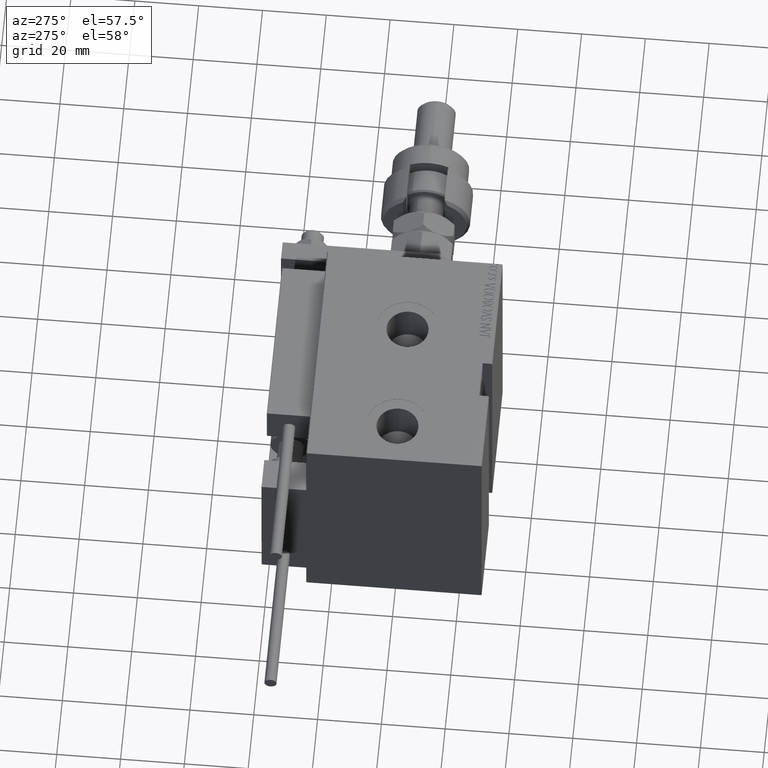
[diagram: clean part render]
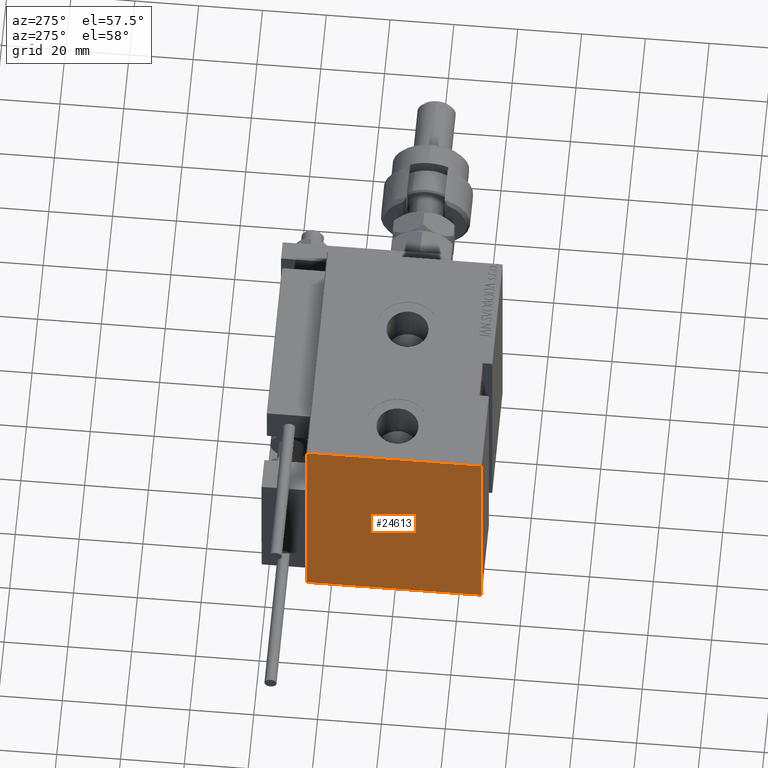
[diagram: same view with one face highlighted and labeled with its STEP entity id]
A machine part, auxiliary view. The second image highlights one B-rep face of the part: STEP entity #24613.
In plain terms, the highlighted planar face has unit normal (-1, 0, 0).
Its self-contained STEP definition (entity closure, byte-faithful):
#812 = DIRECTION ( 'NONE',  ( 0.000000000000000000, -9.251858538542970348E-17, 1.000000000000000000 ) ) ;
#1485 = CARTESIAN_POINT ( 'NONE',  ( 75.00000000000000000, -27.50000000000000000, 37.19999999999999574 ) ) ;
#1640 = ORIENTED_EDGE ( 'NONE', *, *, #42042, .T. ) ;
#1645 = CARTESIAN_POINT ( 'NONE',  ( 75.00000000000000000, -27.50000000000000000, -37.19999999999999574 ) ) ;
#2096 = CARTESIAN_POINT ( 'NONE',  ( 75.00000000000000000, 32.35000000000016485, -32.34999999999978826 ) ) ;
#2756 = EDGE_CURVE ( 'NONE', #33546, #14357, #32787, .T. ) ;
#3073 = EDGE_CURVE ( 'NONE', #53405, #33546, #16888, .T. ) ;
#4338 = DIRECTION ( 'NONE',  ( -0.000000000000000000, 0.7071067811865474617, -0.7071067811865474617 ) ) ;
#4415 = VECTOR ( 'NONE', #812, 1000.000000000000000 ) ;
#4524 = LINE ( 'NONE', #53742, #48428 ) ;
#9063 = EDGE_LOOP ( 'NONE', ( #1640, #49819, #49234, #14435, #24460, #51306, #26239, #28792 ) ) ;
#12038 = VECTOR ( 'NONE', #18885, 999.9999999999998863 ) ;
#12125 = DIRECTION ( 'NONE',  ( -0.000000000000000000, -0.7071067811865474617, 0.7071067811865474617 ) ) ;
#12442 = LINE ( 'NONE', #41276, #13355 ) ;
#13353 = CARTESIAN_POINT ( 'NONE',  ( 75.00000000000000000, -27.50000000000000000, 37.49999999999999289 ) ) ;
#13355 = VECTOR ( 'NONE', #21393, 1000.000000000000000 ) ;
#13556 = EDGE_CURVE ( 'NONE', #48582, #36536, #50590, .T. ) ;
#14357 = VERTEX_POINT ( 'NONE', #20974 ) ;
#14435 = ORIENTED_EDGE ( 'NONE', *, *, #2756, .T. ) ;
#14630 = CARTESIAN_POINT ( 'NONE',  ( 75.00000000000000000, 0.000000000000000000, 0.000000000000000000 ) ) ;
#14902 = FACE_OUTER_BOUND ( 'NONE', #9063, .T. ) ;
#15086 = CARTESIAN_POINT ( 'NONE',  ( 75.00000000000000000, -32.34999999999983800, 32.35000000000021458 ) ) ;
#16421 = EDGE_CURVE ( 'NONE', #14357, #25540, #12442, .T. ) ;
#16888 = LINE ( 'NONE', #33470, #4415 ) ;
#18428 = LINE ( 'NONE', #2096, #21591 ) ;
#18695 = DIRECTION ( 'NONE',  ( -0.000000000000000000, 0.7071067811865434649, 0.7071067811865516806 ) ) ;
#18885 = DIRECTION ( 'NONE',  ( 0.000000000000000000, -0.7071067811865515695, -0.7071067811865435759 ) ) ;
#20974 = CARTESIAN_POINT ( 'NONE',  ( 75.00000000000000000, 27.20000000000000284, 37.50000000000000711 ) ) ;
#21393 = DIRECTION ( 'NONE',  ( 0.000000000000000000, -1.000000000000000000, -2.523234146875355998E-16 ) ) ;
#21591 = VECTOR ( 'NONE', #18695, 1000.000000000000000 ) ;
#21768 = DIRECTION ( 'NONE',  ( 0.000000000000000000, 0.000000000000000000, -1.000000000000000000 ) ) ;
#22220 = VERTEX_POINT ( 'NONE', #29107 ) ;
#24460 = ORIENTED_EDGE ( 'NONE', *, *, #16421, .T. ) ;
#24613 = ADVANCED_FACE ( 'NONE', ( #14902 ), #47806, .T. ) ;
#25540 = VERTEX_POINT ( 'NONE', #29018 ) ;
#26239 = ORIENTED_EDGE ( 'NONE', *, *, #13556, .T. ) ;
#26862 = DIRECTION ( 'NONE',  ( 0.000000000000000000, 0.000000000000000000, -1.000000000000000000 ) ) ;
#28792 = ORIENTED_EDGE ( 'NONE', *, *, #34362, .T. ) ;
#29018 = CARTESIAN_POINT ( 'NONE',  ( 75.00000000000000000, -27.20000000000000284, 37.49999999999999289 ) ) ;
#29107 = CARTESIAN_POINT ( 'NONE',  ( 75.00000000000000000, -27.19999999999999218, -37.50000000000000711 ) ) ;
#29587 = EDGE_CURVE ( 'NONE', #31409, #53405, #18428, .T. ) ;
#29648 = CARTESIAN_POINT ( 'NONE',  ( 75.00000000000000000, 27.49999999999999645, 37.20000000000000995 ) ) ;
#30979 = AXIS2_PLACEMENT_3D ( 'NONE', #14630, #44505, #26862 ) ;
#31409 = VERTEX_POINT ( 'NONE', #31830 ) ;
#31830 = CARTESIAN_POINT ( 'NONE',  ( 75.00000000000000000, 27.19999999999999929, -37.50000000000000711 ) ) ;
#32192 = LINE ( 'NONE', #15086, #12038 ) ;
#32787 = LINE ( 'NONE', #49382, #49583 ) ;
#33470 = CARTESIAN_POINT ( 'NONE',  ( 75.00000000000000000, 27.50000000000000355, -37.50000000000000711 ) ) ;
#33546 = VERTEX_POINT ( 'NONE', #29648 ) ;
#34362 = EDGE_CURVE ( 'NONE', #36536, #22220, #42162, .T. ) ;
#36536 = VERTEX_POINT ( 'NONE', #1645 ) ;
#38565 = VECTOR ( 'NONE', #21768, 1000.000000000000000 ) ;
#41142 = CARTESIAN_POINT ( 'NONE',  ( 75.00000000000000000, 27.50000000000000355, -37.19999999999999574 ) ) ;
#41276 = CARTESIAN_POINT ( 'NONE',  ( 75.00000000000000000, 27.49999999999999645, 37.50000000000000711 ) ) ;
#42042 = EDGE_CURVE ( 'NONE', #22220, #31409, #4524, .T. ) ;
#42162 = LINE ( 'NONE', #46511, #52892 ) ;
#44505 = DIRECTION ( 'NONE',  ( 1.000000000000000000, 0.000000000000000000, 0.000000000000000000 ) ) ;
#45308 = EDGE_CURVE ( 'NONE', #25540, #48582, #32192, .T. ) ;
#46511 = CARTESIAN_POINT ( 'NONE',  ( 75.00000000000000000, -32.34999999999999432, -32.34999999999999432 ) ) ;
#47806 = PLANE ( 'NONE',  #30979 ) ;
#48428 = VECTOR ( 'NONE', #53477, 1000.000000000000000 ) ;
#48582 = VERTEX_POINT ( 'NONE', #1485 ) ;
#49234 = ORIENTED_EDGE ( 'NONE', *, *, #3073, .T. ) ;
#49382 = CARTESIAN_POINT ( 'NONE',  ( 75.00000000000000000, 32.35000000000000142, 32.35000000000000142 ) ) ;
#49583 = VECTOR ( 'NONE', #12125, 1000.000000000000114 ) ;
#49819 = ORIENTED_EDGE ( 'NONE', *, *, #29587, .T. ) ;
#50590 = LINE ( 'NONE', #13353, #38565 ) ;
#51306 = ORIENTED_EDGE ( 'NONE', *, *, #45308, .T. ) ;
#52892 = VECTOR ( 'NONE', #4338, 1000.000000000000114 ) ;
#53405 = VERTEX_POINT ( 'NONE', #41142 ) ;
#53477 = DIRECTION ( 'NONE',  ( 0.000000000000000000, 1.000000000000000000, 0.000000000000000000 ) ) ;
#53742 = CARTESIAN_POINT ( 'NONE',  ( 75.00000000000000000, -27.50000000000000000, -37.50000000000000711 ) ) ;